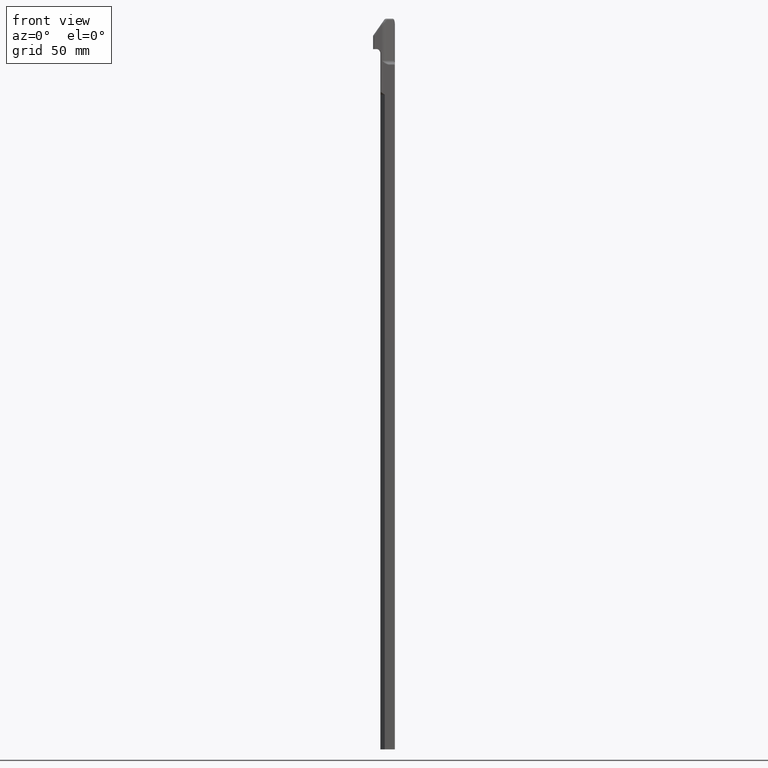
[diagram: clean part render]
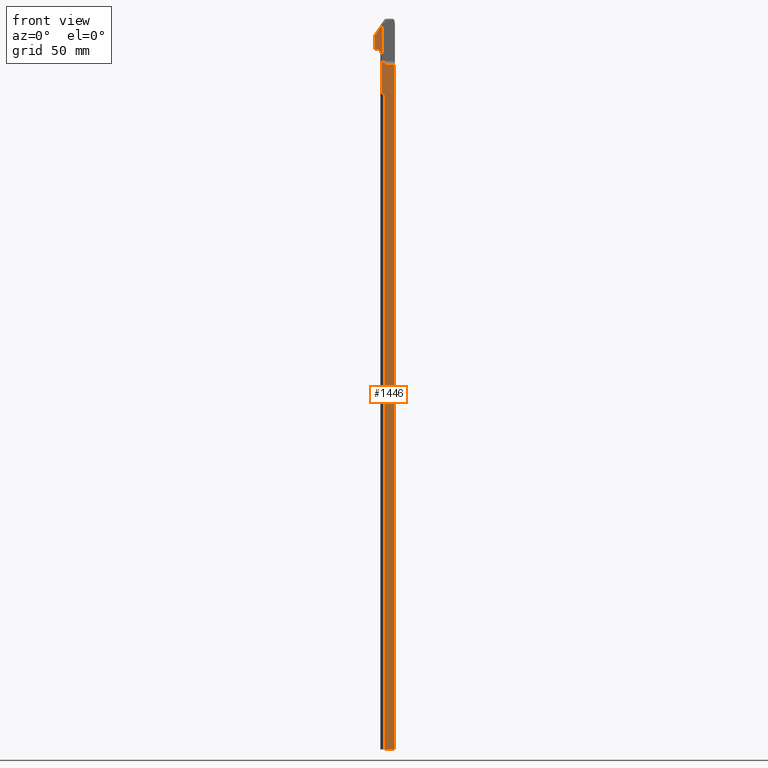
[diagram: same view with one face highlighted and labeled with its STEP entity id]
A machine part, front view. The second image highlights one B-rep face of the part: STEP entity #1446.
In plain terms, the highlighted planar face has unit normal (0, -1, 0).
Its self-contained STEP definition (entity closure, byte-faithful):
#31=DIRECTION('',(1.101715567712E-10,-3.129065504699E-10,-1.E0));
#32=VECTOR('',#31,1.124000002636E1);
#33=CARTESIAN_POINT('',(1.034999987617E-1,-1.184999964829E-1,1.480000026355E0));
#34=LINE('',#33,#32);
#35=DIRECTION('',(-8.164965809277E-1,0.E0,5.773502691896E-1));
#36=VECTOR('',#35,6.858571279793E-2);
#37=CARTESIAN_POINT('',(-4.75E-2,-1.185E-1,9.9E-1));
#38=LINE('',#37,#36);
#39=DIRECTION('',(0.E0,0.E0,1.E0));
#40=VECTOR('',#39,6.404020202536E-1);
#41=CARTESIAN_POINT('',(-1.035E-1,-1.185E-1,1.029597979746E0));
#42=LINE('',#41,#40);
#43=DIRECTION('',(0.E0,0.E0,-1.E0));
#44=VECTOR('',#43,2.073880484448E-1);
#45=CARTESIAN_POINT('',(-2.175E-1,-1.185E-1,1.947388048445E0));
#46=LINE('',#45,#44);
#47=CARTESIAN_POINT('',(-1.985E-1,-1.185E-1,1.947388048445E0));
#48=DIRECTION('',(0.E0,-1.E0,0.E0));
#49=DIRECTION('',(-8.191520442890E-1,0.E0,5.735764363510E-1));
#50=AXIS2_PLACEMENT_3D('',#47,#48,#49);
#52=DIRECTION('',(-5.735764363510E-1,9.212865149392E-10,-8.191520442890E-1));
#53=VECTOR('',#52,2.090453087950E-1);
#54=CARTESIAN_POINT('',(-9.416042558696E-2,-1.185000001926E-1,
2.129525892784E0));
#55=LINE('',#54,#53);
#56=DIRECTION('',(1.785231293920E-5,-1.870185962982E-9,9.999999998406E-1));
#57=VECTOR('',#56,5.795147299982E-1);
#58=CARTESIAN_POINT('',(-9.417077126527E-2,-1.184999991088E-1,
1.550011162878E0));
#59=LINE('',#58,#57);
#60=CARTESIAN_POINT('',(-9.417077126527E-2,-1.184999991088E-1,
1.550011162878E0));
#61=CARTESIAN_POINT('',(-8.871650683586E-2,-1.185007968380E-1,
1.544908155433E0));
#62=CARTESIAN_POINT('',(-7.793426378219E-2,-1.184996338365E-1,
1.534810934066E0));
#63=CARTESIAN_POINT('',(-6.094688640204E-2,-1.185000863153E-1,
1.519981782499E0));
#64=CARTESIAN_POINT('',(-4.494992517530E-2,-1.185000209022E-1,
1.507772532547E0));
#65=CARTESIAN_POINT('',(-2.937581971565E-2,-1.184998300758E-1,
1.497833545975E0));
#66=CARTESIAN_POINT('',(-1.919167084273E-2,-1.185003825550E-1,
1.492696544180E0));
#67=CARTESIAN_POINT('',(-1.416042563780E-2,-1.185003916532E-1,
1.490492643388E0));
#69=CARTESIAN_POINT('',(-1.416042563780E-2,-1.185003916532E-1,
1.490492643388E0));
#70=CARTESIAN_POINT('',(-9.233099689007E-3,-1.185006364896E-1,
1.488333929391E0));
#71=CARTESIAN_POINT('',(1.170223472044E-3,-1.184997445371E-1,1.484591669961E0));
#72=CARTESIAN_POINT('',(1.920147727741E-2,-1.184999393858E-1,1.480842301521E0));
#73=CARTESIAN_POINT('',(3.158472393520E-2,-1.185003117418E-1,1.479999963066E0));
#74=CARTESIAN_POINT('',(3.797160877230E-2,-1.185002732622E-1,1.480000000007E0));
#76=DIRECTION('',(9.999999999910E-1,4.223806945515E-6,4.020927291561E-7));
#77=VECTOR('',#76,6.552838998996E-2);
#78=CARTESIAN_POINT('',(3.797160877230E-2,-1.185002732622E-1,1.480000000007E0));
#79=LINE('',#78,#77);
#237=DIRECTION('',(0.E0,0.E0,-1.E0));
#238=VECTOR('',#237,1.075E1);
#239=CARTESIAN_POINT('',(-4.75E-2,-1.185E-1,9.9E-1));
#240=LINE('',#239,#238);
#258=DIRECTION('',(-1.E0,0.E0,0.E0));
#259=VECTOR('',#258,1.51E-1);
#260=CARTESIAN_POINT('',(1.035E-1,-1.185E-1,-9.76E0));
#261=LINE('',#260,#259);
#296=CARTESIAN_POINT('',(-1.871660026534E-1,-1.185E-1,1.74E0));
#297=CARTESIAN_POINT('',(-1.825227893112E-1,-1.185E-1,1.74E0));
#298=CARTESIAN_POINT('',(-1.735824654734E-1,-1.185E-1,1.739127194047E0));
#299=CARTESIAN_POINT('',(-1.609061535E-1,-1.185E-1,1.735507582963E0));
#300=CARTESIAN_POINT('',(-1.498691506427E-1,-1.185E-1,1.730212379620E0));
#301=CARTESIAN_POINT('',(-1.404714728533E-1,-1.185E-1,1.723824880445E0));
#302=CARTESIAN_POINT('',(-1.329831339419E-1,-1.185E-1,1.717173319864E0));
#303=CARTESIAN_POINT('',(-1.270692783662E-1,-1.185E-1,1.710724971179E0));
#304=CARTESIAN_POINT('',(-1.221458367749E-1,-1.185E-1,1.704368793836E0));
#305=CARTESIAN_POINT('',(-1.178500612448E-1,-1.185E-1,1.697947826228E0));
#306=CARTESIAN_POINT('',(-1.138798794608E-1,-1.185E-1,1.691182944829E0));
#307=CARTESIAN_POINT('',(-1.102123570444E-1,-1.185E-1,1.684189180187E0));
#308=CARTESIAN_POINT('',(-1.067830836919E-1,-1.185E-1,1.677092636918E0));
#309=CARTESIAN_POINT('',(-1.045925135552E-1,-1.185E-1,1.672360099020E0));
#310=CARTESIAN_POINT('',(-1.035E-1,-1.185E-1,1.67E0));
#337=DIRECTION('',(1.E0,0.E0,0.E0));
#338=VECTOR('',#337,3.033399734659E-2);
#339=CARTESIAN_POINT('',(-2.175E-1,-1.185E-1,1.74E0));
#340=LINE('',#339,#338);
#981=CARTESIAN_POINT('',(-9.417077126527E-2,-1.184999991088E-1,
1.550011162878E0));
#1168=CARTESIAN_POINT('',(3.797160877230E-2,-1.185002732622E-1,
1.480000000007E0));
#1169=CARTESIAN_POINT('',(1.034999987617E-1,-1.184999964829E-1,
1.480000026355E0));
#1170=VERTEX_POINT('',#1168);
#1171=VERTEX_POINT('',#1169);
#1208=VERTEX_POINT('',#981);
#1210=VERTEX_POINT('',#67);
#1215=CARTESIAN_POINT('',(-1.035E-1,-1.185E-1,1.67E0));
#1217=VERTEX_POINT('',#1215);
#1219=CARTESIAN_POINT('',(-1.871660026534E-1,-1.185E-1,1.74E0));
#1221=VERTEX_POINT('',#1219);
#1230=CARTESIAN_POINT('',(-1.035E-1,-1.185E-1,1.029597979746E0));
#1231=VERTEX_POINT('',#1230);
#1235=CARTESIAN_POINT('',(-2.175E-1,-1.185E-1,1.74E0));
#1237=VERTEX_POINT('',#1235);
#1241=CARTESIAN_POINT('',(-2.175E-1,-1.185E-1,1.947388048445E0));
#1242=VERTEX_POINT('',#1241);
#1243=CARTESIAN_POINT('',(-2.140638888415E-1,-1.185E-1,1.958286000736E0));
#1244=VERTEX_POINT('',#1243);
#1247=CARTESIAN_POINT('',(-9.416042558696E-2,-1.185000001926E-1,
2.129525892784E0));
#1248=VERTEX_POINT('',#1247);
#1349=CARTESIAN_POINT('',(-4.75E-2,-1.185E-1,9.9E-1));
#1351=VERTEX_POINT('',#1349);
#1363=CARTESIAN_POINT('',(1.035E-1,-1.185E-1,-9.76E0));
#1364=VERTEX_POINT('',#1363);
#1365=CARTESIAN_POINT('',(-4.75E-2,-1.185E-1,-9.76E0));
#1366=VERTEX_POINT('',#1365);
#1412=CARTESIAN_POINT('',(-1.185E-1,-1.185E-1,-1.5E0));
#1413=DIRECTION('',(0.E0,-1.E0,0.E0));
#1414=DIRECTION('',(1.E0,0.E0,0.E0));
#1415=AXIS2_PLACEMENT_3D('',#1412,#1413,#1414);
#1416=PLANE('',#1415);
#1418=ORIENTED_EDGE('',*,*,#1417,.T.);
#1420=ORIENTED_EDGE('',*,*,#1419,.T.);
#1422=ORIENTED_EDGE('',*,*,#1421,.F.);
#1424=ORIENTED_EDGE('',*,*,#1423,.T.);
#1426=ORIENTED_EDGE('',*,*,#1425,.T.);
#1428=ORIENTED_EDGE('',*,*,#1427,.F.);
#1430=ORIENTED_EDGE('',*,*,#1429,.F.);
#1432=ORIENTED_EDGE('',*,*,#1431,.F.);
#1434=ORIENTED_EDGE('',*,*,#1433,.F.);
#1436=ORIENTED_EDGE('',*,*,#1435,.F.);
#1438=ORIENTED_EDGE('',*,*,#1437,.F.);
#1440=ORIENTED_EDGE('',*,*,#1439,.T.);
#1442=ORIENTED_EDGE('',*,*,#1441,.T.);
#1443=ORIENTED_EDGE('',*,*,#1402,.T.);
#1444=EDGE_LOOP('',(#1418,#1420,#1422,#1424,#1426,#1428,#1430,#1432,#1434,#1436,
#1438,#1440,#1442,#1443));
#1445=FACE_OUTER_BOUND('',#1444,.F.);
#1446=ADVANCED_FACE('',(#1445),#1416,.T.);
#51=CIRCLE('',#50,1.9E-2);
#68=B_SPLINE_CURVE_WITH_KNOTS('',3,(#60,#61,#62,#63,#64,#65,#66,#67),
.UNSPECIFIED.,.F.,.F.,(4,1,1,1,1,4),(0.E0,2.E-1,4.E-1,6.E-1,8.E-1,1.E0),
.UNSPECIFIED.);
#75=B_SPLINE_CURVE_WITH_KNOTS('',3,(#69,#70,#71,#72,#73,#74),.UNSPECIFIED.,.F.,
.F.,(4,1,1,4),(0.E0,3.333333333333E-1,6.666666666667E-1,1.E0),.UNSPECIFIED.);
#311=B_SPLINE_CURVE_WITH_KNOTS('',3,(#296,#297,#298,#299,#300,#301,#302,#303,
#304,#305,#306,#307,#308,#309,#310),.UNSPECIFIED.,.F.,.F.,(4,1,1,1,1,1,1,1,1,1,
1,1,4),(0.E0,8.333333333333E-2,1.666666666667E-1,2.5E-1,3.333333333333E-1,
4.166666666667E-1,5.E-1,5.833333333333E-1,6.666666666667E-1,7.5E-1,
8.333333333333E-1,9.166666666667E-1,1.E0),.UNSPECIFIED.);
#1402=EDGE_CURVE('',#1170,#1171,#79,.T.);
#1417=EDGE_CURVE('',#1171,#1364,#34,.T.);
#1419=EDGE_CURVE('',#1364,#1366,#261,.T.);
#1421=EDGE_CURVE('',#1351,#1366,#240,.T.);
#1423=EDGE_CURVE('',#1351,#1231,#38,.T.);
#1425=EDGE_CURVE('',#1231,#1217,#42,.T.);
#1427=EDGE_CURVE('',#1221,#1217,#311,.T.);
#1429=EDGE_CURVE('',#1237,#1221,#340,.T.);
#1431=EDGE_CURVE('',#1242,#1237,#46,.T.);
#1433=EDGE_CURVE('',#1244,#1242,#51,.T.);
#1435=EDGE_CURVE('',#1248,#1244,#55,.T.);
#1437=EDGE_CURVE('',#1208,#1248,#59,.T.);
#1439=EDGE_CURVE('',#1208,#1210,#68,.T.);
#1441=EDGE_CURVE('',#1210,#1170,#75,.T.);